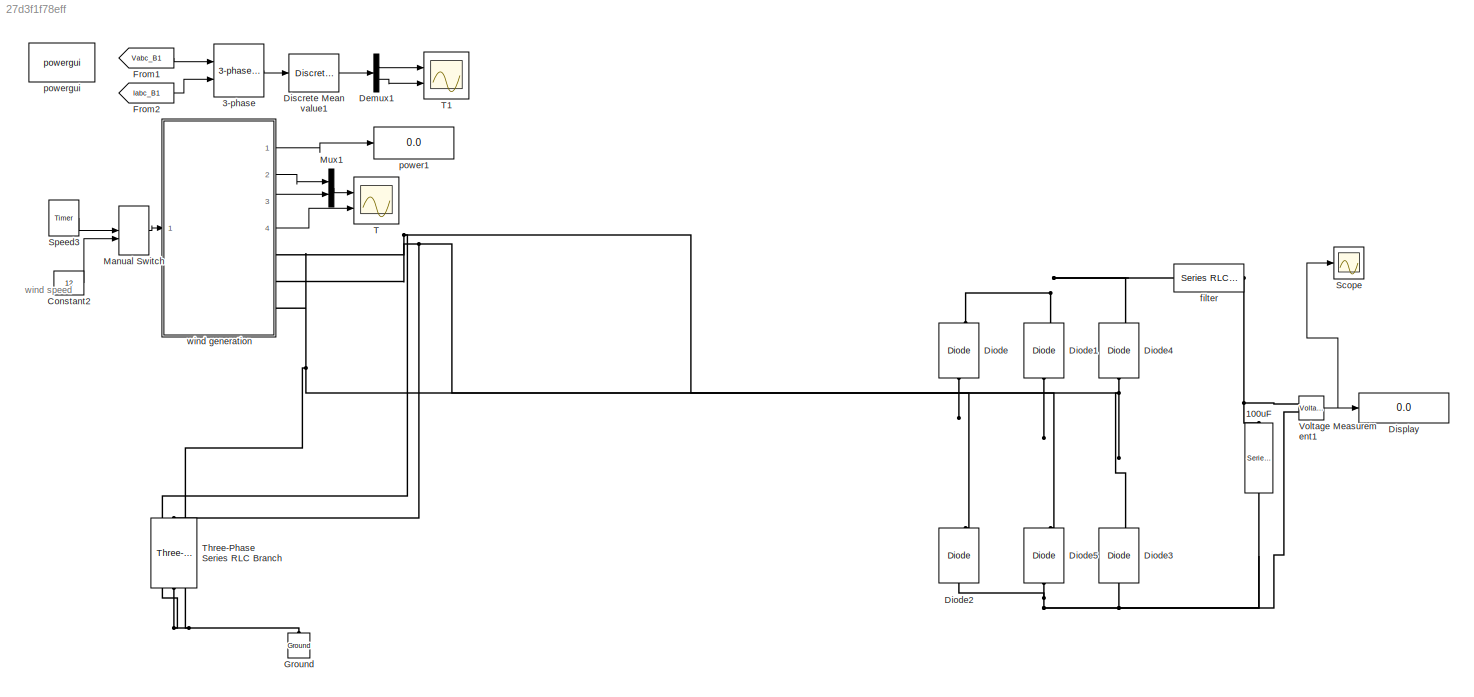
MODEL slx_27d3f1f78eff
KIND model
CONFIG AbsTol = auto
CONFIG EnableMultiTasking = on
CONFIG FixedStep = auto
CONFIG MaxStep = auto
CONFIG MinStep = auto
CONFIG RelTol = 1e-3
CONFIG SampleTimeConstraint = Unconstrained
CONFIG Solver = ode45
CONFIG SolverName = ode45
CONFIG StartTime = 0.0
CONFIG StopTime = 10.0
BLOCK [Reference] 100uF  REF=powerlib/Elements/Series RLC Branch
  Ports = [0, 0, 0, 0, 0, 1, 1]
  SourceBlock = powerlib/Elements/Series RLC Branch
  SourceProductBaseCode = PS
  SourceProductName = Simscape Electrical
  SourceType = Series RLC Branch
BLOCK [Reference] 3-phase   REF=powerlib_extras/Measurements/3-phase 
Instantaneous 
Active & Reactive Power
  Ports = [2, 1]
  SourceBlock = powerlib_extras/Measurements/3-phase \nInstantaneous \nActive & Reactive Power
  SourceProductBaseCode = PS
  SourceProductName = Simscape Electrical
  SourceType = 3-phase instantaneous active and reactive power
BLOCK [Constant] Constant2
  Value = 12
BLOCK [Demux] Demux1
  DisplayOption = bar
  Outputs = 2
  Ports = [1, 2]
BLOCK [Reference] Diode  REF=powerlib/Power
Electronics/Diode
  Ports = [0, 1, 0, 0, 0, 1, 1]
  SourceBlock = powerlib/Power\nElectronics/Diode
  SourceProductBaseCode = PS
  SourceProductName = Simscape Electrical
  SourceType = Diode
BLOCK [Reference] Diode1  REF=powerlib/Power
Electronics/Diode
  Ports = [0, 1, 0, 0, 0, 1, 1]
  SourceBlock = powerlib/Power\nElectronics/Diode
  SourceProductBaseCode = PS
  SourceProductName = Simscape Electrical
  SourceType = Diode
BLOCK [Reference] Diode2  REF=powerlib/Power
Electronics/Diode
  Ports = [0, 1, 0, 0, 0, 1, 1]
  SourceBlock = powerlib/Power\nElectronics/Diode
  SourceProductBaseCode = PS
  SourceProductName = Simscape Electrical
  SourceType = Diode
BLOCK [Reference] Diode3  REF=powerlib/Power
Electronics/Diode
  Ports = [0, 1, 0, 0, 0, 1, 1]
  SourceBlock = powerlib/Power\nElectronics/Diode
  SourceProductBaseCode = PS
  SourceProductName = Simscape Electrical
  SourceType = Diode
BLOCK [Reference] Diode4  REF=powerlib/Power
Electronics/Diode
  Ports = [0, 1, 0, 0, 0, 1, 1]
  SourceBlock = powerlib/Power\nElectronics/Diode
  SourceProductBaseCode = PS
  SourceProductName = Simscape Electrical
  SourceType = Diode
BLOCK [Reference] Diode5  REF=powerlib/Power
Electronics/Diode
  Ports = [0, 1, 0, 0, 0, 1, 1]
  SourceBlock = powerlib/Power\nElectronics/Diode
  SourceProductBaseCode = PS
  SourceProductName = Simscape Electrical
  SourceType = Diode
BLOCK [Reference] Discrete Mean value1  REF=powerlib_extras/Discrete
Measurements/Discrete 
Mean value
  Ports = [1, 1]
  SourceBlock = powerlib_extras/Discrete\nMeasurements/Discrete \nMean value
  SourceProductBaseCode = PS
  SourceProductName = Simscape Electrical
  SourceType = Discrete Mean value
BLOCK [Display] Display
  Decimation = 1
  Ports = [1]
BLOCK [From] From1
  CloseFcn = tagdialog Close
  GotoTag = Vabc_B1
  TagVisibility = global
BLOCK [From] From2
  CloseFcn = tagdialog Close
  GotoTag = Iabc_B1
  TagVisibility = global
BLOCK [Reference] Ground  REF=powerlib/Elements/Ground
  Ports = [0, 0, 0, 0, 0, 1]
  SourceBlock = powerlib/Elements/Ground
  SourceProductBaseCode = PS
  SourceProductName = Simscape Electrical
  SourceType = Ground
BLOCK [ManualSwitch] Manual Switch
  CurrentSetting = 0
BLOCK [Mux] Mux1
  DisplayOption = bar
  Inputs = 2
  Ports = [2, 1]
BLOCK [Scope] Scope
  Floating = off
  NumInputPorts = 1
  Ports = [1]
  ScopeSpecificationString = Simulink.scopes.TimeScopeBlockCfg('CurrentConfiguration', extmgr.ConfigurationSet(extmgr.Configuration('Core','General UI',true),extmgr.Configuration('Core','Source UI',true),extmgr.Configuration('Sources','WiredSimulink',true,'DataLoggingVariableName','ScopeData1'),extmgr.Configuration('Visuals','Time Domain',true,'SerializedDisplays',{struct('MinYLimReal','-12.4787','MaxYLimReal','112.30834','YL...<+2086ch>
BLOCK [Reference] Speed3  REF=powerlib_extras/Control 
Blocks/Timer
  Ports = [0, 1]
  SourceBlock = powerlib_extras/Control \nBlocks/Timer
  SourceProductBaseCode = PS
  SourceProductName = Simscape Electrical
  SourceType = Timer
BLOCK [Scope] T
  Floating = off
  NumInputPorts = 2
  Ports = [2]
  ScopeSpecificationString = C++SS(StrPVP('Location','[-103, 381, 1177, 635]'),StrPVP('Open','off'),MxPVP('AxesTitles',53,'struct(''axes1'',''%<SignalLabel>'',''axes2'',''%<SignalLabel>'')'),StrPVP('YMin','39.75~152.46'),StrPVP('YMax','39.97~152.59'),StrPVP('SaveToWorkspace','on'),StrPVP('SaveName','Wind_MPPT'),StrPVP('DataFormat','StructureWithTime'),StrPVP('LimitDataPoints','off'),StrPVP('BlockParamSampleInput','on'),StrPVP...<+59ch>
BLOCK [Scope] T1
  Floating = off
  NumInputPorts = 2
  Ports = [2]
  ScopeSpecificationString = C++SS(StrPVP('Location','[5, 43, 1285, 714]'),StrPVP('Open','off'),MxPVP('AxesTitles',53,'struct(''axes1'',''%<SignalLabel>'',''axes2'',''%<SignalLabel>'')'),StrPVP('YMin','4380~-4e-014'),StrPVP('YMax','4520~3.5e-014'),StrPVP('SaveToWorkspace','on'),StrPVP('SaveName','Wind_MPPT1'),StrPVP('DataFormat','StructureWithTime'),StrPVP('LimitDataPoints','off'),StrPVP('BlockParamSampleInput','on'),StrPVP('...<+57ch>
BLOCK [Reference] Three-Phase Series RLC Branch  REF=powerlib/Elements/Three-Phase
Series RLC Branch
  AttributesFormatString = \n
  Ports = [0, 0, 0, 0, 0, 3, 3]
  SourceBlock = powerlib/Elements/Three-Phase\nSeries RLC Branch
  SourceProductBaseCode = PS
  SourceProductName = Simscape Electrical
  SourceType = Three-Phase Series RLC Branch
BLOCK [Reference] Voltage Measurement1  REF=powerlib/Measurements/Voltage Measurement
  Ports = [0, 1, 0, 0, 0, 2]
  SourceBlock = powerlib/Measurements/Voltage Measurement
  SourceProductBaseCode = PS
  SourceProductName = Simscape Electrical
  SourceType = Voltage Measurement
BLOCK [Reference] filter  REF=powerlib/Elements/Series RLC Branch
  Ports = [0, 0, 0, 0, 0, 1, 1]
  SourceBlock = powerlib/Elements/Series RLC Branch
  SourceProductBaseCode = PS
  SourceProductName = Simscape Electrical
  SourceType = Series RLC Branch
BLOCK [Display] power1
  Decimation = 1
  Ports = [1]
  SampleTime = 1e-3
BLOCK [Reference] powergui  REF=powerlib/powergui
  Ports = []
  SourceBlock = powerlib/powergui
  SourceProductBaseCode = PS
  SourceProductName = Simscape Electrical
  SourceType = PSB option menu block
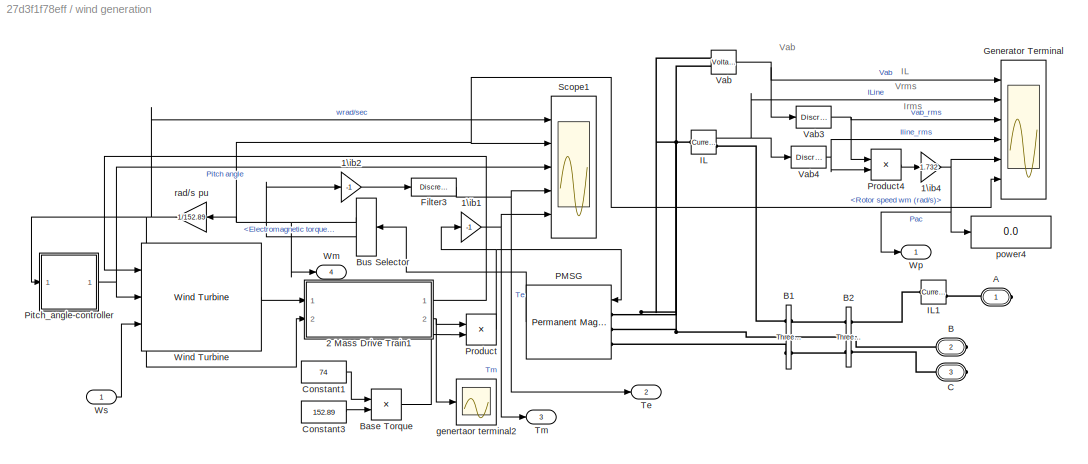
BLOCK [SubSystem] wind generation
  Ports = [1, 4, 0, 0, 0, 0, 3]
  RequestExecContextInheritance = off
BLOCK [Gain] wind generation/1\ib1
  Gain = -1
BLOCK [Gain] wind generation/1\ib2
  Gain = -1
BLOCK [Gain] wind generation/1\ib4
  Gain = 1.732
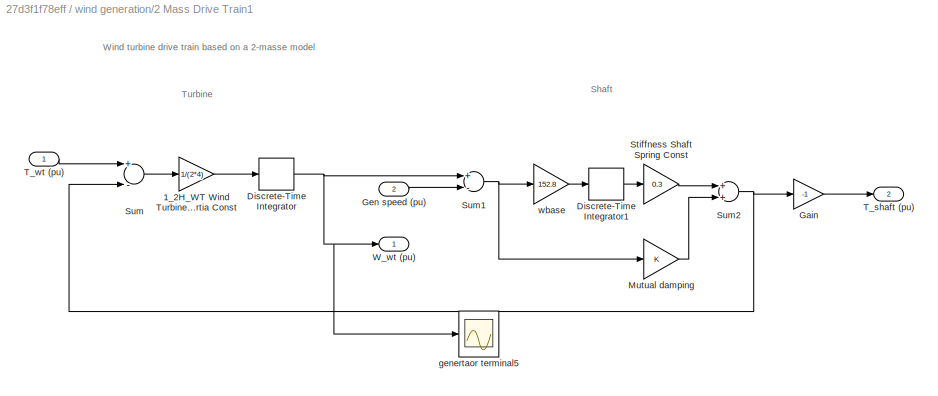
BLOCK [SubSystem] wind generation/2 Mass Drive Train1
  Ports = [2, 2]
  RequestExecContextInheritance = off
BLOCK [Gain] wind generation/2 Mass Drive Train1/1_2H_WT Wind Turbine Inertia Const
  Gain = 1/(2*4)
BLOCK [DiscreteIntegrator] wind generation/2 Mass Drive Train1/Discrete-Time Integrator
  ICPrevOutput = DiscIntNeverNeededParam
  ICPrevScaledInput = DiscIntNeverNeededParam
  InitialCondition = 1
  Ports = [1, 1]
  SampleTime = 20e-6
BLOCK [DiscreteIntegrator] wind generation/2 Mass Drive Train1/Discrete-Time Integrator1
  ICPrevOutput = DiscIntNeverNeededParam
  ICPrevScaledInput = DiscIntNeverNeededParam
  InitialCondition = 1/0.3
  LowerSaturationLimit = -4
  Ports = [1, 1]
  SampleTime = 20e-6
  UpperSaturationLimit = 4
BLOCK [Gain] wind generation/2 Mass Drive Train1/Gain
  Gain = -1
BLOCK [Inport] wind generation/2 Mass Drive Train1/Gen speed (pu)
  IconDisplay = Port number
  Port = 2
BLOCK [Gain] wind generation/2 Mass Drive Train1/Mutual damping
BLOCK [Gain] wind generation/2 Mass Drive Train1/Stiffness Shaft Spring Const
  Gain = 0.3
BLOCK [Sum] wind generation/2 Mass Drive Train1/Sum
  Inputs = +-
  Ports = [2, 1]
BLOCK [Sum] wind generation/2 Mass Drive Train1/Sum1
  Inputs = +-
  Ports = [2, 1]
BLOCK [Sum] wind generation/2 Mass Drive Train1/Sum2
  Ports = [2, 1]
BLOCK [Outport] wind generation/2 Mass Drive Train1/T_shaft (pu)
  IconDisplay = Port number
  Port = 2
BLOCK [Inport] wind generation/2 Mass Drive Train1/T_wt (pu)
  IconDisplay = Port number
BLOCK [Outport] wind generation/2 Mass Drive Train1/W_wt (pu)
  IconDisplay = Port number
BLOCK [Scope] wind generation/2 Mass Drive Train1/genertaor terminal5
  Floating = off
  NumInputPorts = 1
  Ports = [1]
  ScopeSpecificationString = C++SS(StrPVP('Location','[131, 499, 657, 778]'),StrPVP('Open','off'),MxPVP('AxesTitles',53,'struct(''axes1'',''%<SignalLabel>'')'),StrPVP('YMin','0.94175'),StrPVP('YMax','0.94425'),StrPVP('SaveToWorkspace','on'),StrPVP('SaveName','Wwt'),StrPVP('DataFormat','StructureWithTime'),StrPVP('LimitDataPoints','off'),StrPVP('BlockParamSampleInput','on'),StrPVP('BlockParamSampleTime','100e-6'),StrPVP('Decim...<+12ch>
BLOCK [Gain] wind generation/2 Mass Drive Train1/wbase
  Gain = 152.8
BLOCK [PMIOPort] wind generation/A
  Side = Right
  Tag = PMCPort
BLOCK [PMIOPort] wind generation/B
  Port = 2
  Side = Right
  Tag = PMCPort
BLOCK [Reference] wind generation/B1  REF=powerlib/Measurements/Three-Phase
V-I Measurement
  Ports = [0, 0, 0, 0, 0, 3, 3]
  SourceBlock = powerlib/Measurements/Three-Phase\nV-I Measurement
  SourceProductBaseCode = PS
  SourceProductName = Simscape Electrical
  SourceType = Three-Phase VI Measurement
BLOCK [Reference] wind generation/B2   REF=powerlib/Measurements/Three-Phase
V-I Measurement
  Ports = [0, 0, 0, 0, 0, 3, 3]
  SourceBlock = powerlib/Measurements/Three-Phase\nV-I Measurement
  SourceProductBaseCode = PS
  SourceProductName = Simscape Electrical
  SourceType = Three-Phase VI Measurement
BLOCK [Product] wind generation/Base Torque
  InputSameDT = off
  Inputs = */
  OutDataTypeStr = Inherit: Inherit via internal rule
  Ports = [2, 1]
  SaturateOnIntegerOverflow = off
BLOCK [BusSelector] wind generation/Bus Selector
  OutputAsBus = off
  OutputSignals = Rotor speed wm (rad/s),Electromagnetic torque Te (N*m)
  Ports = [1, 2]
BLOCK [PMIOPort] wind generation/C
  Port = 3
  Side = Right
  Tag = PMCPort
BLOCK [Constant] wind generation/Constant1
  Value = 74
BLOCK [Constant] wind generation/Constant3
  Value = 152.89
BLOCK [Reference] wind generation/Filter3  REF=powerlib_extras/Discrete 
Control Blocks/Discrete
1st-Order
Filter
  Ports = [1, 1]
  SourceBlock = powerlib_extras/Discrete \nControl Blocks/Discrete\n1st-Order\nFilter
  SourceProductBaseCode = PS
  SourceProductName = Simscape Electrical
  SourceType = Discrete 1st-Order Filter
BLOCK [Scope] wind generation/Generator Terminal
  Floating = off
  NumInputPorts = 6
  Ports = [6]
  ScopeSpecificationString = C++SS(StrPVP('Location','[189, 351, 939, 655]'),StrPVP('Open','off'),MxPVP('AxesTitles',53,'struct(''axes1'',''%<SignalLabel>'',''axes2'',''%<SignalLabel>'',''axes3'',''%<SignalLabel>'',''axes4'',''%<SignalLabel>'',''axes5'',''%<SignalLabel>'',''axes6'',''%<SignalLabel>'')'),StrPVP('YMin','-400~-10~265~4.9~2400~109.05'),StrPVP('YMax','400~7.5~295~5.6~2800~109.5'),StrPVP('SaveToWorkspace','on'),Str...<+212ch>
BLOCK [Reference] wind generation/IL  REF=powerlib/Measurements/Current Measurement
  Ports = [0, 1, 0, 0, 0, 1, 1]
  SourceBlock = powerlib/Measurements/Current Measurement
  SourceProductBaseCode = PS
  SourceProductName = Simscape Electrical
  SourceType = Current Measurement
BLOCK [Reference] wind generation/IL1  REF=powerlib/Measurements/Current Measurement
  Ports = [0, 1, 0, 0, 0, 1, 1]
  SourceBlock = powerlib/Measurements/Current Measurement
  SourceProductBaseCode = PS
  SourceProductName = Simscape Electrical
  SourceType = Current Measurement
BLOCK [Reference] wind generation/PMSG  REF=powerlib/Machines/Permanent Magnet
Synchronous Machine
  Ports = [1, 1, 0, 0, 0, 3]
  SourceBlock = powerlib/Machines/Permanent Magnet\nSynchronous Machine
  SourceProductBaseCode = PS
  SourceProductName = Simscape Electrical
  SourceType = Permanent Magnet Synchronous Machine
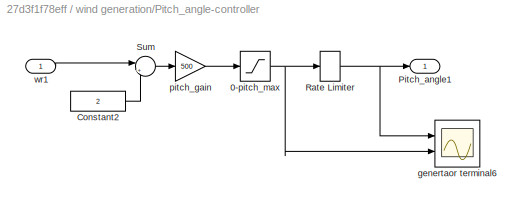
BLOCK [SubSystem] wind generation/Pitch_angle-controller
  Ports = [1, 1]
  RequestExecContextInheritance = off
BLOCK [Saturate] wind generation/Pitch_angle-controller/0-pitch_max
  InputPortMap = u0
  LowerLimit = 0
  Ports = [1, 1]
  UpperLimit = 45
BLOCK [Constant] wind generation/Pitch_angle-controller/Constant2
  Value = 2
BLOCK [Outport] wind generation/Pitch_angle-controller/Pitch_angle1
  IconDisplay = Port number
BLOCK [RateLimiter] wind generation/Pitch_angle-controller/Rate Limiter   
  FallingSlewLimit = -2
  RisingSlewLimit = 2
BLOCK [Sum] wind generation/Pitch_angle-controller/Sum
  IconShape = round
  InputSameDT = off
  Inputs = |+-
  OutDataTypeStr = Inherit: Inherit via internal rule
  Ports = [2, 1]
BLOCK [Scope] wind generation/Pitch_angle-controller/genertaor terminal6
  Floating = off
  NumInputPorts = 2
  Ports = [2]
  ScopeSpecificationString = C++SS(StrPVP('Location','[483, 142, 1009, 421]'),StrPVP('Open','off'),MxPVP('AxesTitles',53,'struct(''axes1'',''%<SignalLabel>'',''axes2'',''%<SignalLabel>'')'),StrPVP('YMin','-1~-1'),StrPVP('YMax','1~1'),StrPVP('SaveToWorkspace','on'),StrPVP('SaveName','ScopeData9'),StrPVP('DataFormat','StructureWithTime'),StrPVP('LimitDataPoints','off'),StrPVP('BlockParamSampleInput','on'),StrPVP('BlockParamSamp...<+43ch>
BLOCK [Gain] wind generation/Pitch_angle-controller/pitch_gain
  Gain = 500
BLOCK [Inport] wind generation/Pitch_angle-controller/wr1
  IconDisplay = Port number
BLOCK [Product] wind generation/Product
  InputSameDT = off
  OutDataTypeStr = Inherit: Inherit via internal rule
  Ports = [2, 1]
  SaturateOnIntegerOverflow = off
BLOCK [Product] wind generation/Product4
  InputSameDT = off
  OutDataTypeStr = Inherit: Inherit via internal rule
  Ports = [2, 1]
  SaturateOnIntegerOverflow = off
BLOCK [Scope] wind generation/Scope1
  Floating = off
  NumInputPorts = 5
  Ports = [5]
  ScopeSpecificationString = C++SS(StrPVP('Location','[589, 65, 1215, 714]'),StrPVP('Open','off'),MxPVP('AxesTitles',53,'struct(''axes1'',''%<SignalLabel>'',''axes2'',''%<SignalLabel>'',''axes3'',''%<SignalLabel>'',''axes4'',''%<SignalLabel>'',''axes5'',''%<SignalLabel>'')'),StrPVP('YMin','0.993~151.8~-1~37.5~40.05'),StrPVP('YMax','1~152.8~1~42.5~40.325'),StrPVP('SaveToWorkspace','on'),StrPVP('SaveName','ScopeData90'),StrPVP(...<+168ch>
BLOCK [Outport] wind generation/Te
  IconDisplay = Port number
  Port = 2
BLOCK [Outport] wind generation/Tm
  IconDisplay = Port number
  Port = 3
BLOCK [Reference] wind generation/Vab  REF=powerlib/Measurements/Voltage Measurement
  Ports = [0, 1, 0, 0, 0, 2]
  SourceBlock = powerlib/Measurements/Voltage Measurement
  SourceProductBaseCode = PS
  SourceProductName = Simscape Electrical
  SourceType = Voltage Measurement
BLOCK [Reference] wind generation/Vab3  REF=powerlib_extras/Discrete
Measurements/Discrete 
RMS value
  Ports = [1, 1]
  SourceBlock = powerlib_extras/Discrete\nMeasurements/Discrete \nRMS value
  SourceProductBaseCode = PS
  SourceProductName = Simscape Electrical
  SourceType = Discrete RMS value
BLOCK [Reference] wind generation/Vab4  REF=powerlib_extras/Discrete
Measurements/Discrete 
RMS value
  Ports = [1, 1]
  SourceBlock = powerlib_extras/Discrete\nMeasurements/Discrete \nRMS value
  SourceProductBaseCode = PS
  SourceProductName = Simscape Electrical
  SourceType = Discrete RMS value
BLOCK [Reference] wind generation/Wind Turbine  REF=re_lib/Wind Generation/Wind Turbine
  Ports = [3, 1]
  SourceBlock = re_lib/Wind Generation/Wind Turbine
  SourceProductBaseCode = PS
  SourceProductName = Simscape Electrical
  SourceType = Wind Turbine
BLOCK [Outport] wind generation/Wm
  IconDisplay = Port number
  Port = 4
BLOCK [Outport] wind generation/Wp
  IconDisplay = Port number
BLOCK [Inport] wind generation/Ws
  IconDisplay = Port number
BLOCK [Scope] wind generation/genertaor terminal2
  Floating = off
  NumInputPorts = 1
  Ports = [1]
  ScopeSpecificationString = Simulink.scopes.TimeScopeBlockCfg('CurrentConfiguration', extmgr.ConfigurationSet(extmgr.Configuration('Core','General UI',true),extmgr.Configuration('Core','Source UI',true),extmgr.Configuration('Sources','WiredSimulink',true,'DataLogging',true,'DataLoggingVariableName','ref_torque1','DataLoggingSaveFormat','StructureWithTime','SampleTime','100e-6','DataLoggingDecimation','1','DataLoggingDecimate...<+1697ch>
BLOCK [Display] wind generation/power4
  Decimation = 1
  Ports = [1]
  SampleTime = 1e-3
BLOCK [Gain] wind generation/rad//s pu
  Gain = 1/152.89
ANNOTATION (root): wind speed
ANNOTATION wind generation: IL
ANNOTATION wind generation: Irms
ANNOTATION wind generation: Vab
ANNOTATION wind generation: Vrms
ANNOTATION wind generation/2 Mass Drive Train1: Shaft
ANNOTATION wind generation/2 Mass Drive Train1: Turbine
ANNOTATION wind generation/2 Mass Drive Train1: Wind turbine drive train based on a 2-masse model
LINE 3-phase :1 -> Discrete Mean value1:1
LINE Constant2:1 -> Manual Switch:2
LINE Demux1:1 -> T1:1
LINE Demux1:2 -> T1:2
LINE Discrete Mean value1:1 -> Demux1:1
LINE From1:1 -> 3-phase :1
LINE From2:1 -> 3-phase :2
LINE Manual Switch:1 -> wind generation:1
LINE Mux1:1 -> T:1
LINE Speed3:1 -> Manual Switch:1
NET Voltage Measurement1:1 -> Display:1, Scope:1
NET wind generation/1\ib1:1 -> wind generation/Scope1:5, wind generation/Tm:1
LINE wind generation/1\ib2:1 -> wind generation/Filter3:1
NET wind generation/1\ib4:1 -> wind generation/Generator Terminal:5, wind generation/Wp:1, wind generation/power4:1
LINE wind generation/2 Mass Drive Train1/1_2H_WT Wind Turbine Inertia Const:1 -> wind generation/2 Mass Drive Train1/Discrete-Time Integrator:1
LINE wind generation/2 Mass Drive Train1/Discrete-Time Integrator1:1 -> wind generation/2 Mass Drive Train1/Stiffness Shaft Spring Const:1
NET wind generation/2 Mass Drive Train1/Discrete-Time Integrator:1 -> wind generation/2 Mass Drive Train1/Sum1:1, wind generation/2 Mass Drive Train1/W_wt (pu):1, wind generation/2 Mass Drive Train1/genertaor terminal5:1
LINE wind generation/2 Mass Drive Train1/Gain:1 -> wind generation/2 Mass Drive Train1/T_shaft (pu):1
LINE wind generation/2 Mass Drive Train1/Gen speed (pu):1 -> wind generation/2 Mass Drive Train1/Sum1:2
LINE wind generation/2 Mass Drive Train1/Mutual damping:1 -> wind generation/2 Mass Drive Train1/Sum2:2
LINE wind generation/2 Mass Drive Train1/Stiffness Shaft Spring Const:1 -> wind generation/2 Mass Drive Train1/Sum2:1
NET wind generation/2 Mass Drive Train1/Sum1:1 -> wind generation/2 Mass Drive Train1/Mutual damping:1, wind generation/2 Mass Drive Train1/wbase:1
NET wind generation/2 Mass Drive Train1/Sum2:1 -> wind generation/2 Mass Drive Train1/Gain:1, wind generation/2 Mass Drive Train1/Sum:2
LINE wind generation/2 Mass Drive Train1/Sum:1 -> wind generation/2 Mass Drive Train1/1_2H_WT Wind Turbine Inertia Const:1
LINE wind generation/2 Mass Drive Train1/T_wt (pu):1 -> wind generation/2 Mass Drive Train1/Sum:1
LINE wind generation/2 Mass Drive Train1/wbase:1 -> wind generation/2 Mass Drive Train1/Discrete-Time Integrator1:1
LINE wind generation/2 Mass Drive Train1:1 -> wind generation/Wind Turbine:1
NET wind generation/2 Mass Drive Train1:2 -> wind generation/Product:1, wind generation/genertaor terminal2:1
LINE wind generation/Base Torque:1 -> wind generation/Product:2
NET wind generation/Bus Selector:1 -> wind generation/Generator Terminal:6, wind generation/Scope1:2, wind generation/Wm:1, wind generation/rad//s pu:1
LINE wind generation/Bus Selector:2 -> wind generation/1\ib2:1
LINE wind generation/Constant1:1 -> wind generation/Base Torque:1
LINE wind generation/Constant3:1 -> wind generation/Base Torque:2
NET wind generation/Filter3:1 -> wind generation/Scope1:4, wind generation/Te:1
NET wind generation/IL:1 -> wind generation/Generator Terminal:2, wind generation/Vab4:1
LINE wind generation/PMSG:1 -> wind generation/Bus Selector:1
NET wind generation/Pitch_angle-controller/0-pitch_max:1 -> wind generation/Pitch_angle-controller/Rate Limiter   :1, wind generation/Pitch_angle-controller/genertaor terminal6:2
LINE wind generation/Pitch_angle-controller/Constant2:1 -> wind generation/Pitch_angle-controller/Sum:2
NET wind generation/Pitch_angle-controller/Rate Limiter   :1 -> wind generation/Pitch_angle-controller/Pitch_angle1:1, wind generation/Pitch_angle-controller/genertaor terminal6:1
LINE wind generation/Pitch_angle-controller/Sum:1 -> wind generation/Pitch_angle-controller/pitch_gain:1
LINE wind generation/Pitch_angle-controller/pitch_gain:1 -> wind generation/Pitch_angle-controller/0-pitch_max:1
LINE wind generation/Pitch_angle-controller/wr1:1 -> wind generation/Pitch_angle-controller/Sum:1
NET wind generation/Pitch_angle-controller:1 -> wind generation/Scope1:3, wind generation/Wind Turbine:2
LINE wind generation/Product4:1 -> wind generation/1\ib4:1
NET wind generation/Product:1 -> wind generation/1\ib1:1, wind generation/PMSG:1
NET wind generation/Vab3:1 -> wind generation/Generator Terminal:3, wind generation/Product4:1
NET wind generation/Vab4:1 -> wind generation/Generator Terminal:4, wind generation/Product4:2
NET wind generation/Vab:1 -> wind generation/Generator Terminal:1, wind generation/Vab3:1
LINE wind generation/Wind Turbine:1 -> wind generation/2 Mass Drive Train1:1
LINE wind generation/Ws:1 -> wind generation/Wind Turbine:3
NET wind generation/rad//s pu:1 -> wind generation/2 Mass Drive Train1:2, wind generation/Pitch_angle-controller:1, wind generation/Scope1:1
LINE wind generation:1 -> power1:1
LINE wind generation:2 -> Mux1:1
LINE wind generation:3 -> Mux1:2
LINE wind generation:4 -> T:2
PNET net1: 100uF:LConn1 -- Voltage Measurement1:LConn1 -- filter:RConn1
PNET net2: 100uF:RConn1 -- Diode2:LConn1 -- Diode3:LConn1 -- Diode5:LConn1 -- Voltage Measurement1:LConn2
PNET net3: Diode1:LConn1 -- Diode5:RConn1 -- Three-Phase Series RLC Branch:LConn2 -- wind generation:RConn2
PNET net4: Diode1:RConn1 -- Diode4:RConn1 -- Diode:RConn1 -- filter:LConn1
PNET net5: Diode2:RConn1 -- Diode:LConn1 -- Three-Phase Series RLC Branch:LConn1 -- wind generation:RConn1
PNET net6: Diode3:RConn1 -- Diode4:LConn1 -- Three-Phase Series RLC Branch:LConn3 -- wind generation:RConn3
PNET net7: Ground:LConn1 -- Three-Phase Series RLC Branch:RConn1 -- Three-Phase Series RLC Branch:RConn2 -- Three-Phase Series RLC Branch:RConn3
PLINE wind generation/A:RConn1 -- wind generation/IL1:RConn1
PLINE wind generation/B1:LConn1 -- wind generation/IL:RConn1
PNET net8: wind generation/B1:LConn2 -- wind generation/PMSG:LConn2 -- wind generation/Vab:LConn2
PLINE wind generation/B1:LConn3 -- wind generation/PMSG:LConn3
PLINE wind generation/B1:RConn1 -- wind generation/B2 :LConn1
PLINE wind generation/B1:RConn2 -- wind generation/B2 :LConn2
PLINE wind generation/B1:RConn3 -- wind generation/B2 :LConn3
PLINE wind generation/B2 :RConn1 -- wind generation/IL1:LConn1
PLINE wind generation/B2 :RConn2 -- wind generation/B:RConn1
PLINE wind generation/B2 :RConn3 -- wind generation/C:RConn1
PNET net9: wind generation/IL:LConn1 -- wind generation/PMSG:LConn1 -- wind generation/Vab:LConn1
note: NET lines group one-source signal fan-out (src -> all destinations, sorted); 1:1 wires keep LINE; PNET lines group multi-terminal physical nets as a canonical sorted terminal list (undirected conserving connections); 2-terminal nets keep the pairwise PLINE form
